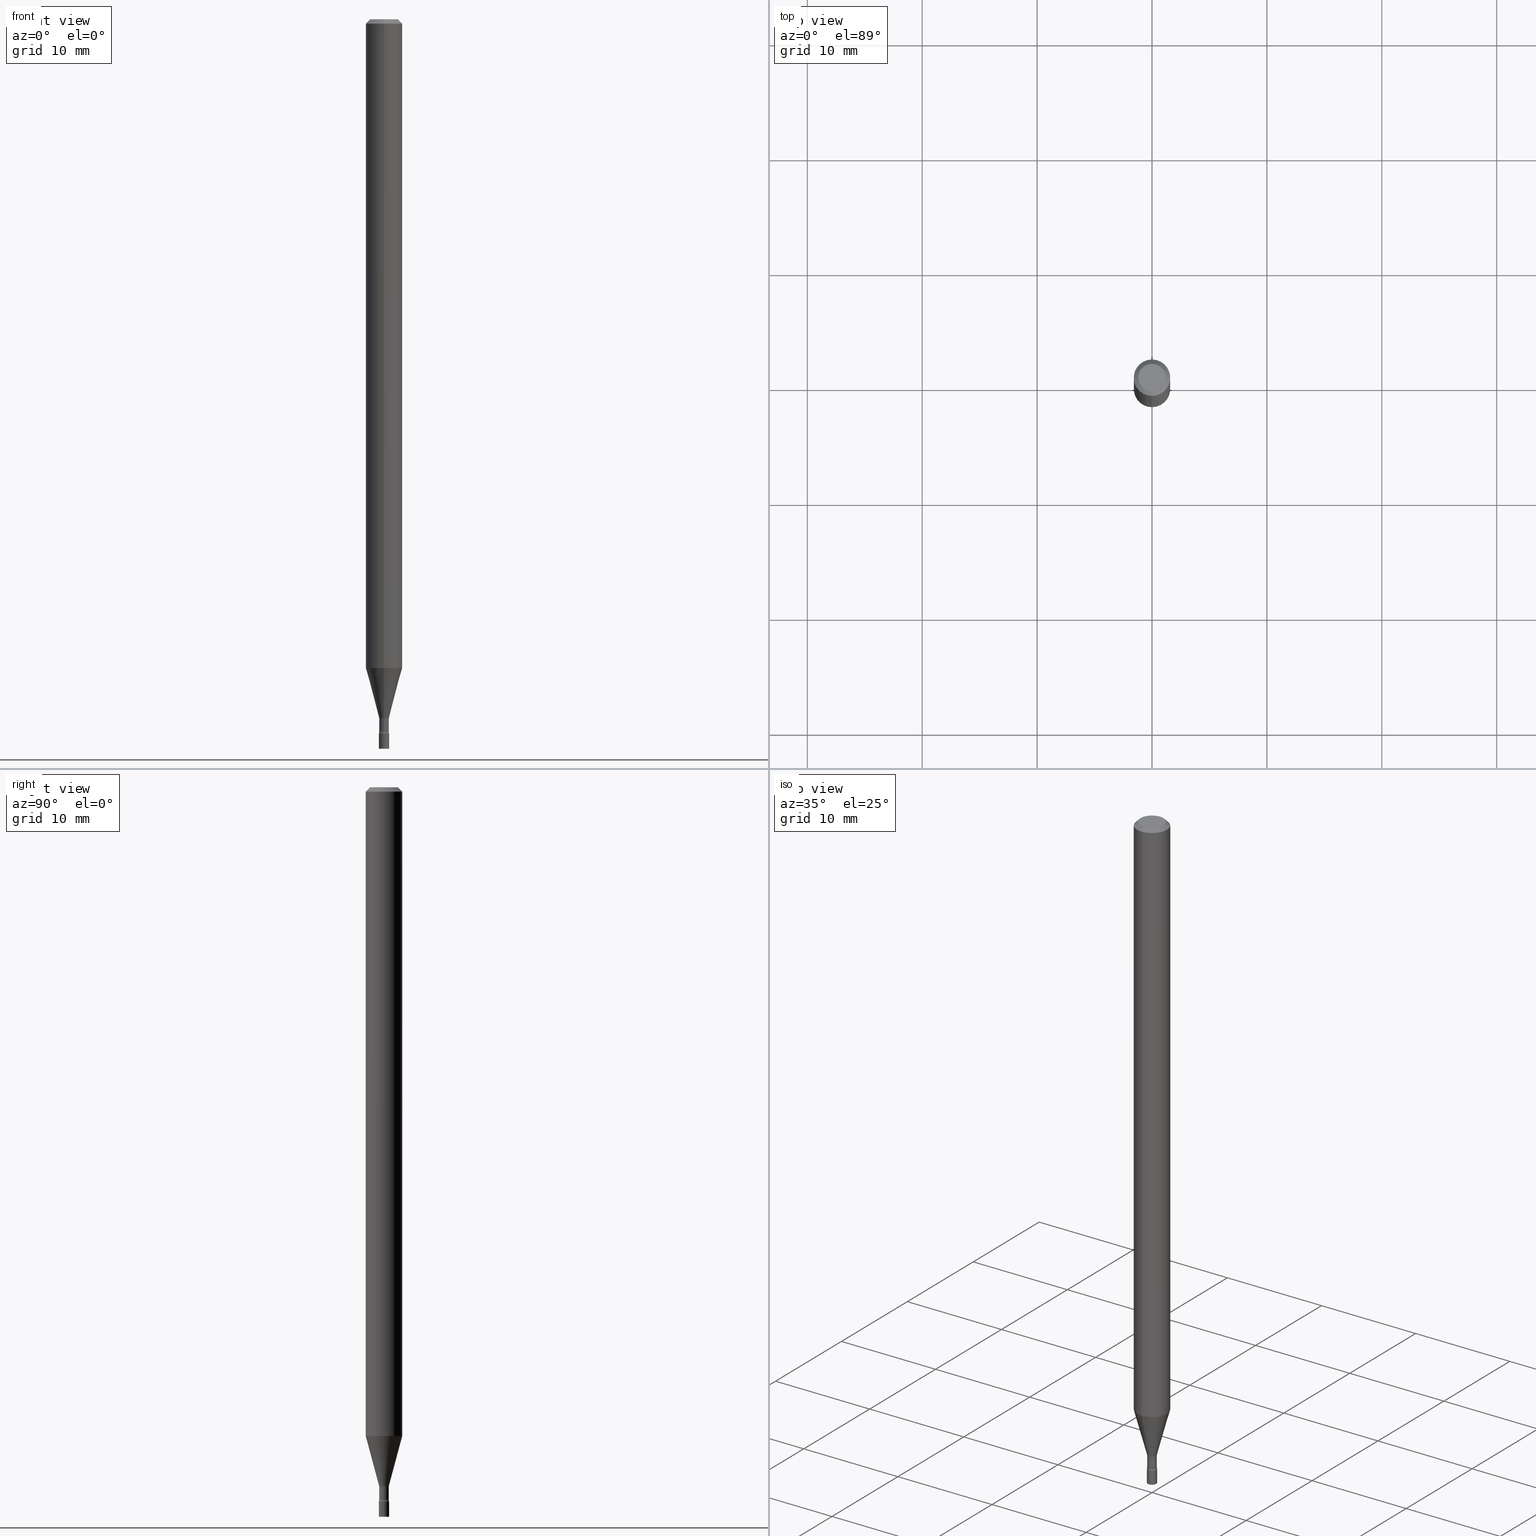
[diagram: canonical four-view strip — front | top / right | iso, engineering-drawing reading convention]
A machine part, canonical four-view strip (front | top / right | iso — engineering-drawing reading convention). The complete STEP part file that produces these views, byte-faithful:
ISO-10303-21;
HEADER;
FILE_DESCRIPTION (( 'STEP AP203' ),
    '1' );
FILE_NAME ('09641.STEP',
    '2024-03-09T00:17:16',
    ( '' ),
    ( '' ),
    'SwSTEP 2.0',
    'SolidWorks 2023',
    '' );
FILE_SCHEMA (( 'CONFIG_CONTROL_DESIGN' ));
ENDSEC;

DATA;
#1 = EDGE_CURVE ( 'NONE', #246, #104, #488, .T. ) ;
#2 = VERTEX_POINT ( 'NONE', #434 ) ;
#3 = CIRCLE ( 'NONE', #224, 0.01750000000000000167 ) ;
#4 = ORIENTED_EDGE ( 'NONE', *, *, #81, .T. ) ;
#5 = ORIENTED_EDGE ( 'NONE', *, *, #1, .F. ) ;
#6 = CARTESIAN_POINT ( 'NONE',  ( 1.222018468595694927E-16, 0.01749999999999145642, -2.447000000000000064 ) ) ;
#7 = CARTESIAN_POINT ( 'NONE',  ( 2.823025816869058306E-16, 0.01696111260565561982, -2.393092501787273285 ) ) ;
#8 = AXIS2_PLACEMENT_3D ( 'NONE', #44, #211, #223 ) ;
#9 = ORIENTED_EDGE ( 'NONE', *, *, #339, .F. ) ;
#10 = PLANE ( 'NONE',  #133 ) ;
#11 = ORIENTED_EDGE ( 'NONE', *, *, #392, .T. ) ;
#12 = EDGE_CURVE ( 'NONE', #88, #520, #515, .T. ) ;
#13 =( LENGTH_UNIT ( ) NAMED_UNIT ( * ) SI_UNIT ( $, .METRE. ) );
#14 = VERTEX_POINT ( 'NONE', #187 ) ;
#15 = SECURITY_CLASSIFICATION_LEVEL ( 'unclassified' ) ;
#16 = ADVANCED_BREP_SHAPE_REPRESENTATION ( '09641', ( #43, #38, #377 ), #290 ) ;
#17 = DIRECTION ( 'NONE',  ( -6.982962677686265922E-15, -1.000000000000000000, 4.370956789862821150E-15 ) ) ;
#18 = AXIS2_PLACEMENT_3D ( 'NONE', #186, #350, #230 ) ;
#19 = DIRECTION ( 'NONE',  ( -6.982962677686265922E-15, -1.000000000000000000, 4.370956789862821150E-15 ) ) ;
#20 = AXIS2_PLACEMENT_3D ( 'NONE', #483, #443, #330 ) ;
#21 = ADVANCED_FACE ( 'NONE', ( #507 ), #402, .T. ) ;
#22 = DIRECTION ( 'NONE',  ( 1.000000000000000000, -6.982962677686248567E-15, 0.000000000000000000 ) ) ;
#23 = COORDINATED_UNIVERSAL_TIME_OFFSET ( 5, 0, .BEHIND. ) ;
#24 = CARTESIAN_POINT ( 'NONE',  ( 4.440892098500625669E-16, 0.06250000000000000000, -2.182166251609361446E-16 ) ) ;
#25 = ADVANCED_FACE ( 'NONE', ( #100 ), #455, .F. ) ;
#26 = PERSON_AND_ORGANIZATION_ROLE ( 'design_owner' ) ;
#27 = ADVANCED_FACE ( 'NONE', ( #66 ), #277, .T. ) ;
#28 = CARTESIAN_POINT ( 'NONE',  ( 6.113672015462842613E-29, -8.728703347107864943E-15, -2.500000000000000000 ) ) ;
#29 = AXIS2_PLACEMENT_3D ( 'NONE', #311, #234, #267 ) ;
#30 = DIRECTION ( 'NONE',  ( -6.982962677686265133E-15, -1.000000000000000000, 3.491466002574977919E-15 ) ) ;
#31 = CARTESIAN_POINT ( 'NONE',  ( 5.436641031974993128E-29, -7.762014448073923594E-15, -2.223139060311453363 ) ) ;
#32 = DATE_TIME_ROLE ( 'creation_date' ) ;
#33 = CC_DESIGN_DATE_AND_TIME_ASSIGNMENT ( #184, #348, ( #329 ) ) ;
#34 = EDGE_CURVE ( 'NONE', #88, #289, #57, .T. ) ;
#35 = ORIENTED_EDGE ( 'NONE', *, *, #449, .F. ) ;
#36 = AXIS2_PLACEMENT_3D ( 'NONE', #172, #220, #419 ) ;
#37 = AXIS2_PLACEMENT_3D ( 'NONE', #304, #291, #165 ) ;
#38 = MANIFOLD_SOLID_BREP ( 'Body-Move/Copy2[2]', #482 ) ;
#39 = AXIS2_PLACEMENT_3D ( 'NONE', #275, #508, #313 ) ;
#40 = ORIENTED_EDGE ( 'NONE', *, *, #295, .T. ) ;
#41 = CARTESIAN_POINT ( 'NONE',  ( 1.168842800325367224E-16, 0.01645000000000003404, -5.743461574235851456E-17 ) ) ;
#42 = ORIENTED_EDGE ( 'NONE', *, *, #190, .T. ) ;
#43 = MANIFOLD_SOLID_BREP ( 'Body-Move/Copy2[1]', #72 ) ;
#44 = CARTESIAN_POINT ( 'NONE',  ( 5.984088374291369240E-29, -8.543617308300972946E-15, -2.447000000000000064 ) ) ;
#45 = ORIENTED_EDGE ( 'NONE', *, *, #244, .T. ) ;
#46 = ORIENTED_EDGE ( 'NONE', *, *, #68, .T. ) ;
#47 = PERSON_AND_ORGANIZATION ( #285, #228 ) ;
#48 = EDGE_CURVE ( 'NONE', #289, #409, #150, .T. ) ;
#49 = LOCAL_TIME ( 19, 17, 16.00000000000000000, #379 ) ;
#50 = CARTESIAN_POINT ( 'NONE',  ( 0.000000000000000000, 0.000000000000000000, 0.000000000000000000 ) ) ;
#51 = EDGE_LOOP ( 'NONE', ( #401, #399, #415, #278 ) ) ;
#52 = PERSON_AND_ORGANIZATION ( #285, #228 ) ;
#53 = DIRECTION ( 'NONE',  ( -4.851104656540964275E-15, -0.7071067811865500152, -0.7071067811865450192 ) ) ;
#54 = VERTEX_POINT ( 'NONE', #467 ) ;
#55 = EDGE_CURVE ( 'NONE', #113, #316, #238, .T. ) ;
#56 = EDGE_CURVE ( 'NONE', #128, #321, #358, .T. ) ;
#57 = CIRCLE ( 'NONE', #397, 0.06250000000000000000 ) ;
#58 = DIRECTION ( 'NONE',  ( -2.445468806185136597E-29, 3.491481338843145583E-15, 1.000000000000000000 ) ) ;
#59 = VECTOR ( 'NONE', #95, 39.37007874015748143 ) ;
#60 = CARTESIAN_POINT ( 'NONE',  ( -1.222018468594496598E-16, -0.01750000000000852610, -2.447000000000000064 ) ) ;
#61 = CARTESIAN_POINT ( 'NONE',  ( -1.184388162973270680E-16, -0.01696111260567232867, -2.393092501787273285 ) ) ;
#62 = PERSON_AND_ORGANIZATION_ROLE ( 'design_supplier' ) ;
#63 = EDGE_CURVE ( 'NONE', #196, #2, #257, .T. ) ;
#64 = ORIENTED_EDGE ( 'NONE', *, *, #121, .T. ) ;
#65 = DIRECTION ( 'NONE',  ( -6.982962677686265922E-15, -1.000000000000000000, 3.491466002574978313E-15 ) ) ;
#66 = FACE_OUTER_BOUND ( 'NONE', #51, .T. ) ;
#67 = VECTOR ( 'NONE', #504, 39.37007874015748143 ) ;
#68 = EDGE_CURVE ( 'NONE', #321, #2, #183, .T. ) ;
#69 = COORDINATED_UNIVERSAL_TIME_OFFSET ( 5, 0, .BEHIND. ) ;
#70 = ORIENTED_EDGE ( 'NONE', *, *, #68, .F. ) ;
#71 = CARTESIAN_POINT ( 'NONE',  ( -3.773273898774340269E-16, -0.04749999999999999362, 1.369299957217045003E-16 ) ) ;
#72 = CLOSED_SHELL ( 'NONE', ( #182, #118, #168, #445 ) ) ;
#73 = TOROIDAL_SURFACE ( 'NONE', #124, 0.03145000000000004042, 0.01499999999999996649 ) ;
#74 = PLANE ( 'NONE',  #309 ) ;
#75 = DIRECTION ( 'NONE',  ( -6.982962677686266711E-15, -1.000000000000000000, 0.000000000000000000 ) ) ;
#76 = ORIENTED_EDGE ( 'NONE', *, *, #34, .F. ) ;
#77 = DIRECTION ( 'NONE',  ( 6.982962677686265922E-15, 1.000000000000000000, -3.491466002574978313E-15 ) ) ;
#78 = EDGE_CURVE ( 'NONE', #14, #289, #481, .T. ) ;
#79 = CARTESIAN_POINT ( 'NONE',  ( 5.861752741778387918E-29, -8.368955979459280172E-15, -2.396974787463811207 ) ) ;
#80 = ORIENTED_EDGE ( 'NONE', *, *, #244, .F. ) ;
#81 = EDGE_CURVE ( 'NONE', #83, #287, #374, .T. ) ;
#82 = DIRECTION ( 'NONE',  ( -2.445479515443959514E-29, 3.491466002574978313E-15, 1.000000000000000000 ) ) ;
#83 = VERTEX_POINT ( 'NONE', #506 ) ;
#84 = CARTESIAN_POINT ( 'NONE',  ( 5.852258691683313053E-29, -8.355401111007364178E-15, -2.393092501787273285 ) ) ;
#85 = ORIENTED_EDGE ( 'NONE', *, *, #418, .F. ) ;
#86 = CARTESIAN_POINT ( 'NONE',  ( 1.168842800325962814E-16, 0.01644999999999162757, -2.396974787463811207 ) ) ;
#87 = CONICAL_SURFACE ( 'NONE', #239, 0.01696111260566397425, 0.2617993877991500740 ) ;
#88 = VERTEX_POINT ( 'NONE', #260 ) ;
#89 = CARTESIAN_POINT ( 'NONE',  ( 5.984088374291369240E-29, -8.543617308300972946E-15, -2.447000000000000064 ) ) ;
#90 = APPROVAL_DATE_TIME ( #270, #120 ) ;
#91 = DIRECTION ( 'NONE',  ( -2.445479515443959514E-29, 3.491466002574978313E-15, 1.000000000000000000 ) ) ;
#92 = DIRECTION ( 'NONE',  ( 7.105427357601005014E-15, 1.000000000000000000, 0.000000000000000000 ) ) ;
#93 = DIRECTION ( 'NONE',  ( -6.982962677686265922E-15, -1.000000000000000000, 0.000000000000000000 ) ) ;
#94 = CARTESIAN_POINT ( 'NONE',  ( 0.000000000000000000, 0.000000000000000000, 0.000000000000000000 ) ) ;
#95 = DIRECTION ( 'NONE',  ( 4.937700262164548042E-15, 0.7071067811865451302, -0.7071067811865499042 ) ) ;
#96 = CARTESIAN_POINT ( 'NONE',  ( 2.234656903966115026E-16, 0.03144999999999151946, -2.441486607215153537 ) ) ;
#97 = AXIS2_PLACEMENT_3D ( 'NONE', #310, #470, #276 ) ;
#98 = AXIS2_PLACEMENT_3D ( 'NONE', #363, #367, #420 ) ;
#99 = FACE_OUTER_BOUND ( 'NONE', #498, .T. ) ;
#100 = FACE_OUTER_BOUND ( 'NONE', #337, .T. ) ;
#101 = FACE_OUTER_BOUND ( 'NONE', #492, .T. ) ;
#102 = COORDINATED_UNIVERSAL_TIME_OFFSET ( 5, 0, .BEHIND. ) ;
#103 = FACE_OUTER_BOUND ( 'NONE', #225, .T. ) ;
#104 = VERTEX_POINT ( 'NONE', #148 ) ;
#105 = CARTESIAN_POINT ( 'NONE',  ( -1.148697360478798871E-16, -0.01645000000000860010, -2.441486607215153537 ) ) ;
#106 = APPLICATION_CONTEXT ( 'configuration controlled 3d designs of mechanical parts and assemblies' ) ;
#107 = CARTESIAN_POINT ( 'NONE',  ( 0.000000000000000000, 0.000000000000000000, 0.000000000000000000 ) ) ;
#108 = AXIS2_PLACEMENT_3D ( 'NONE', #231, #344, #306 ) ;
#109 = AXIS2_PLACEMENT_3D ( 'NONE', #242, #159, #325 ) ;
#110 = EDGE_CURVE ( 'NONE', #14, #54, #123, .T. ) ;
#111 = DIRECTION ( 'NONE',  ( -2.445479515443959514E-29, 3.491466002574978313E-15, 1.000000000000000000 ) ) ;
#112 = CARTESIAN_POINT ( 'NONE',  ( 0.01750000000000000167, -8.850905193967374926E-15, -2.500000000000000000 ) ) ;
#113 = VERTEX_POINT ( 'NONE', #315 ) ;
#114 = CARTESIAN_POINT ( 'NONE',  ( -1.148697360479393229E-16, -0.01645000000000003404, 5.743461574235851456E-17 ) ) ;
#115 = ORIENTED_EDGE ( 'NONE', *, *, #199, .F. ) ;
#116 = DIRECTION ( 'NONE',  ( -6.982962677686266711E-15, -1.000000000000000000, 0.000000000000000000 ) ) ;
#117 = AXIS2_PLACEMENT_3D ( 'NONE', #406, #485, #202 ) ;
#118 = ADVANCED_FACE ( 'NONE', ( #103 ), #200, .T. ) ;
#119 = ADVANCED_FACE ( 'NONE', ( #286 ), #509, .F. ) ;
#120 = APPROVAL ( #516, 'UNSPECIFIED' ) ;
#121 = EDGE_CURVE ( 'NONE', #464, #487, #197, .T. ) ;
#122 = ORIENTED_EDGE ( 'NONE', *, *, #48, .F. ) ;
#123 = CIRCLE ( 'NONE', #97, 0.01500000000000003587 ) ;
#124 = AXIS2_PLACEMENT_3D ( 'NONE', #180, #139, #491 ) ;
#125 = PRODUCT ( '09641', '09641', '', ( #143 ) ) ;
#126 = EDGE_LOOP ( 'NONE', ( #296, #446, #255, #157 ) ) ;
#127 = CARTESIAN_POINT ( 'NONE',  ( 6.113672015462842613E-29, -8.728703347107864943E-15, -2.500000000000000000 ) ) ;
#128 = VERTEX_POINT ( 'NONE', #112 ) ;
#129 = APPROVAL_DATE_TIME ( #175, #141 ) ;
#130 = EDGE_LOOP ( 'NONE', ( #411, #46, #209, #331 ) ) ;
#131 = APPLICATION_CONTEXT ( 'configuration controlled 3d designs of mechanical parts and assemblies' ) ;
#132 = VECTOR ( 'NONE', #457, 39.37007874015748143 ) ;
#133 = AXIS2_PLACEMENT_3D ( 'NONE', #6, #334, #65 ) ;
#134 = ORIENTED_EDGE ( 'NONE', *, *, #110, .F. ) ;
#135 = CARTESIAN_POINT ( 'NONE',  ( -0.01750000000000000167, -8.511834112870504850E-15, -2.500000000000000000 ) ) ;
#136 = CARTESIAN_POINT ( 'NONE',  ( -4.364351673553916201E-16, -0.06250000000000000000, 2.182166251609361446E-16 ) ) ;
#137 = CARTESIAN_POINT ( 'NONE',  ( 4.364351673553919652E-16, 0.06249999999999995143, -0.01500000000000024751 ) ) ;
#138 = EDGE_CURVE ( 'NONE', #520, #409, #416, .T. ) ;
#139 = DIRECTION ( 'NONE',  ( -2.445479515443959514E-29, 3.491466002574978313E-15, 1.000000000000000000 ) ) ;
#140 = CALENDAR_DATE ( 2024, 8, 3 ) ;
#141 = APPROVAL ( #215, 'UNSPECIFIED' ) ;
#142 = FACE_OUTER_BOUND ( 'NONE', #130, .T. ) ;
#143 = MECHANICAL_CONTEXT ( 'NONE', #106, 'mechanical' ) ;
#144 = CARTESIAN_POINT ( 'NONE',  ( 5.861727071954997320E-29, -8.368992740107411140E-15, -2.396974787463811207 ) ) ;
#145 = VECTOR ( 'NONE', #208, 39.37007874015748143 ) ;
#146 = DIRECTION ( 'NONE',  ( -6.982962677686266711E-15, -1.000000000000000000, 3.491466002574978313E-15 ) ) ;
#147 = ADVANCED_FACE ( 'NONE', ( #99 ), #365, .T. ) ;
#148 = CARTESIAN_POINT ( 'NONE',  ( 1.243449787580772513E-16, 0.01749999999999143907, -2.447000000000000064 ) ) ;
#149 = ORIENTED_EDGE ( 'NONE', *, *, #55, .T. ) ;
#150 = LINE ( 'NONE', #136, #132 ) ;
#151 = APPROVAL_ROLE ( '' ) ;
#152 = AXIS2_PLACEMENT_3D ( 'NONE', #50, #222, #185 ) ;
#153 = APPROVAL_PERSON_ORGANIZATION ( #47, #141, #465 ) ;
#154 = APPROVAL_PERSON_ORGANIZATION ( #195, #171, #400 ) ;
#155 = DIRECTION ( 'NONE',  ( 7.105427357601005014E-15, 1.000000000000000000, 0.000000000000000000 ) ) ;
#156 = CC_DESIGN_PERSON_AND_ORGANIZATION_ASSIGNMENT ( #52, #268, ( #216 ) ) ;
#157 = ORIENTED_EDGE ( 'NONE', *, *, #517, .T. ) ;
#158 = AXIS2_PLACEMENT_3D ( 'NONE', #96, #459, #92 ) ;
#159 = DIRECTION ( 'NONE',  ( -2.445479515443959514E-29, 3.491466002574978313E-15, 1.000000000000000000 ) ) ;
#160 = APPROVAL_PERSON_ORGANIZATION ( #357, #120, #151 ) ;
#161 = CARTESIAN_POINT ( 'NONE',  ( 5.861727071954997320E-29, -8.368992740107411140E-15, -2.396974787463811207 ) ) ;
#162 = FACE_OUTER_BOUND ( 'NONE', #340, .T. ) ;
#163 = EDGE_LOOP ( 'NONE', ( #503, #490, #252, #453 ) ) ;
#164 = ORIENTED_EDGE ( 'NONE', *, *, #1, .T. ) ;
#165 = DIRECTION ( 'NONE',  ( -6.982962677686265922E-15, -1.000000000000000000, 0.000000000000000000 ) ) ;
#166 = EDGE_LOOP ( 'NONE', ( #369, #356 ) ) ;
#167 = PLANE ( 'NONE',  #499 ) ;
#168 = ADVANCED_FACE ( 'NONE', ( #430 ), #338, .T. ) ;
#169 =( NAMED_UNIT ( * ) SI_UNIT ( $, .STERADIAN. ) SOLID_ANGLE_UNIT ( ) );
#170 = ORIENTED_EDGE ( 'NONE', *, *, #63, .T. ) ;
#171 = APPROVAL ( #469, 'UNSPECIFIED' ) ;
#172 = CARTESIAN_POINT ( 'NONE',  ( 3.668219273165946278E-31, -5.237199003862477479E-17, -0.01500000000000003067 ) ) ;
#173 = FACE_OUTER_BOUND ( 'NONE', #382, .T. ) ;
#174 = ORIENTED_EDGE ( 'NONE', *, *, #138, .T. ) ;
#175 = DATE_AND_TIME ( #352, #49 ) ;
#176 = DIMENSIONAL_EXPONENTS ( 1.000000000000000000, 0.000000000000000000, 0.000000000000000000, 0.000000000000000000, 0.000000000000000000, 0.000000000000000000, 0.000000000000000000 ) ;
#177 = AXIS2_PLACEMENT_3D ( 'NONE', #425, #58, #22 ) ;
#178 = AXIS2_PLACEMENT_3D ( 'NONE', #205, #288, #75 ) ;
#179 = ORIENTED_EDGE ( 'NONE', *, *, #458, .F. ) ;
#180 = CARTESIAN_POINT ( 'NONE',  ( 5.970579338663442113E-29, -8.524404928127174921E-15, -2.441486607215153537 ) ) ;
#181 = PERSON_AND_ORGANIZATION ( #285, #228 ) ;
#182 = ADVANCED_FACE ( 'NONE', ( #142 ), #308, .T. ) ;
#183 = LINE ( 'NONE', #440, #474 ) ;
#184 = DATE_AND_TIME ( #262, #451 ) ;
#185 = DIRECTION ( 'NONE',  ( 1.000000000000000000, -6.982962677686265922E-15, 4.876176775795936353E-29 ) ) ;
#186 = CARTESIAN_POINT ( 'NONE',  ( 5.970605485175430126E-29, -8.524367484833838844E-15, -2.441486607215153537 ) ) ;
#187 = CARTESIAN_POINT ( 'NONE',  ( -1.184388162973270680E-16, -0.01696111260567232867, -2.393092501787273285 ) ) ;
#188 = PERSON_AND_ORGANIZATION_ROLE ( 'classification_officer' ) ;
#189 = CARTESIAN_POINT ( 'NONE',  ( 5.436641031974993128E-29, -7.762014448073923594E-15, -2.223139060311453363 ) ) ;
#190 = EDGE_CURVE ( 'NONE', #289, #88, #284, .T. ) ;
#191 = DIRECTION ( 'NONE',  ( 6.982962677686265922E-15, 1.000000000000000000, -3.483106191921935554E-15 ) ) ;
#192 = CIRCLE ( 'NONE', #20, 0.01750000000000000167 ) ;
#193 = CYLINDRICAL_SURFACE ( 'NONE', #428, 0.01645000000000003404 ) ;
#194 = CARTESIAN_POINT ( 'NONE',  ( 3.668219273165946278E-31, -5.237199003862477479E-17, -0.01500000000000003067 ) ) ;
#195 = PERSON_AND_ORGANIZATION ( #285, #228 ) ;
#196 = VERTEX_POINT ( 'NONE', #303 ) ;
#197 = CIRCLE ( 'NONE', #271, 0.01500000000000002720 ) ;
#198 = ORIENTED_EDGE ( 'NONE', *, *, #395, .T. ) ;
#199 = EDGE_CURVE ( 'NONE', #83, #104, #375, .T. ) ;
#200 = PLANE ( 'NONE',  #319 ) ;
#201 = ADVANCED_FACE ( 'NONE', ( #266 ), #73, .F. ) ;
#202 = DIRECTION ( 'NONE',  ( -6.982962677686266711E-15, -1.000000000000000000, 3.491466002574978313E-15 ) ) ;
#203 = ORIENTED_EDGE ( 'NONE', *, *, #12, .T. ) ;
#204 = AXIS2_PLACEMENT_3D ( 'NONE', #494, #253, #116 ) ;
#205 = CARTESIAN_POINT ( 'NONE',  ( 5.852258691683313053E-29, -8.355401111007364178E-15, -2.393092501787273285 ) ) ;
#206 = ORIENTED_EDGE ( 'NONE', *, *, #339, .T. ) ;
#207 = CC_DESIGN_PERSON_AND_ORGANIZATION_ASSIGNMENT ( #226, #62, ( #216 ) ) ;
#208 = DIRECTION ( 'NONE',  ( -2.445479515443959234E-29, 3.491466002574978313E-15, 1.000000000000000000 ) ) ;
#209 = ORIENTED_EDGE ( 'NONE', *, *, #63, .F. ) ;
#210 = FACE_OUTER_BOUND ( 'NONE', #219, .T. ) ;
#211 = DIRECTION ( 'NONE',  ( -2.445479515443959514E-29, 3.491466002574978313E-15, 1.000000000000000000 ) ) ;
#212 = ORIENTED_EDGE ( 'NONE', *, *, #336, .T. ) ;
#213 = VECTOR ( 'NONE', #261, 39.37007874015748143 ) ;
#214 = EDGE_LOOP ( 'NONE', ( #431, #332, #212, #9 ) ) ;
#215 = APPROVAL_STATUS ( 'not_yet_approved' ) ;
#216 = PRODUCT_DEFINITION_FORMATION_WITH_SPECIFIED_SOURCE ( 'ANY', '', #125, .NOT_KNOWN. ) ;
#217 = ADVANCED_FACE ( 'NONE', ( #210 ), #167, .F. ) ;
#218 = DIRECTION ( 'NONE',  ( -1.000000000000000000, 6.982962677686265922E-15, -4.876176775795935793E-29 ) ) ;
#219 = EDGE_LOOP ( 'NONE', ( #149, #391 ) ) ;
#220 = DIRECTION ( 'NONE',  ( -2.445479515443959514E-29, 3.491466002574978313E-15, 1.000000000000000000 ) ) ;
#221 = DIRECTION ( 'NONE',  ( -2.445479515443959514E-29, 3.491466002574978313E-15, 1.000000000000000000 ) ) ;
#222 = DIRECTION ( 'NONE',  ( -2.445468806185136597E-29, 3.491481338843145583E-15, 1.000000000000000000 ) ) ;
#223 = DIRECTION ( 'NONE',  ( -6.982962677686265922E-15, -1.000000000000000000, 0.000000000000000000 ) ) ;
#224 = AXIS2_PLACEMENT_3D ( 'NONE', #127, #293, #249 ) ;
#225 = EDGE_LOOP ( 'NONE', ( #170, #198 ) ) ;
#226 = PERSON_AND_ORGANIZATION ( #285, #228 ) ;
#227 = CARTESIAN_POINT ( 'NONE',  ( 1.205159535236945149E-16, 0.01696111260565561982, -2.393092501787273285 ) ) ;
#228 = ORGANIZATION ( 'UNSPECIFIED', 'UNSPECIFIED', '' ) ;
#229 = DIRECTION ( 'NONE',  ( -2.445479515443959514E-29, 3.491466002574978313E-15, 1.000000000000000000 ) ) ;
#230 = DIRECTION ( 'NONE',  ( -6.982962677686265133E-15, -1.000000000000000000, 0.000000000000000000 ) ) ;
#231 = CARTESIAN_POINT ( 'NONE',  ( 7.071015835063315397E-46, -1.009544804439341533E-31, -2.891463940060696814E-17 ) ) ;
#232 = EDGE_CURVE ( 'NONE', #321, #128, #3, .T. ) ;
#233 = DIRECTION ( 'NONE',  ( 1.000000000000000000, -6.982962677686265922E-15, 4.876176775795935793E-29 ) ) ;
#234 = DIRECTION ( 'NONE',  ( -2.445479515443959514E-29, 3.491466002574978313E-15, 1.000000000000000000 ) ) ;
#235 = AXIS2_PLACEMENT_3D ( 'NONE', #500, #390, #380 ) ;
#236 = CALENDAR_DATE ( 2024, 8, 3 ) ;
#237 = EDGE_CURVE ( 'NONE', #83, #487, #493, .T. ) ;
#238 = CIRCLE ( 'NONE', #108, 0.04749999999999999362 ) ;
#239 = AXIS2_PLACEMENT_3D ( 'NONE', #84, #82, #254 ) ;
#240 = CARTESIAN_POINT ( 'NONE',  ( 1.222018468595707746E-16, 0.01749999999999127254, -2.500000000000000000 ) ) ;
#241 = ADVANCED_FACE ( 'NONE', ( #412 ), #10, .F. ) ;
#242 = CARTESIAN_POINT ( 'NONE',  ( 5.970579338663442113E-29, -8.524404928127174921E-15, -2.441486607215153537 ) ) ;
#243 = DIRECTION ( 'NONE',  ( -2.438088387897960049E-29, 3.491481338843145188E-15, 1.000000000000000000 ) ) ;
#244 = EDGE_CURVE ( 'NONE', #464, #88, #472, .T. ) ;
#245 = PRODUCT_RELATED_PRODUCT_CATEGORY ( 'detail', '', ( #125 ) ) ;
#246 = VERTEX_POINT ( 'NONE', #60 ) ;
#247 = VECTOR ( 'NONE', #388, 39.37007874015748854 ) ;
#248 = AXIS2_PLACEMENT_3D ( 'NONE', #345, #496, #505 ) ;
#249 = DIRECTION ( 'NONE',  ( 1.000000000000000000, -6.982962677686303787E-15, 0.000000000000000000 ) ) ;
#250 = CARTESIAN_POINT ( 'NONE',  ( 7.071015835063315397E-46, -1.009544804439341533E-31, -2.891463940060696814E-17 ) ) ;
#251 = CC_DESIGN_APPROVAL ( #120, ( #216 ) ) ;
#252 = ORIENTED_EDGE ( 'NONE', *, *, #449, .T. ) ;
#253 = DIRECTION ( 'NONE',  ( -2.445479515443959514E-29, 3.491466002574978313E-15, 1.000000000000000000 ) ) ;
#254 = DIRECTION ( 'NONE',  ( -6.982962677686266711E-15, -1.000000000000000000, 0.000000000000000000 ) ) ;
#255 = ORIENTED_EDGE ( 'NONE', *, *, #110, .T. ) ;
#256 = ORIENTED_EDGE ( 'NONE', *, *, #395, .F. ) ;
#257 = CIRCLE ( 'NONE', #177, 0.01750000000000000167 ) ;
#258 = VECTOR ( 'NONE', #283, 39.37007874015748143 ) ;
#259 = ORIENTED_EDGE ( 'NONE', *, *, #190, .F. ) ;
#260 = CARTESIAN_POINT ( 'NONE',  ( 4.440892098501167517E-16, 0.06249999999999222150, -2.223139060311453807 ) ) ;
#261 = DIRECTION ( 'NONE',  ( -2.445479515443959234E-29, 3.491466002574978313E-15, 1.000000000000000000 ) ) ;
#262 = CALENDAR_DATE ( 2024, 8, 3 ) ;
#263 = ADVANCED_FACE ( 'NONE', ( #389 ), #193, .T. ) ;
#264 = CARTESIAN_POINT ( 'NONE',  ( -4.364351673553374352E-16, -0.06250000000000777156, -2.223139060311453363 ) ) ;
#265 = DIRECTION ( 'NONE',  ( -6.982962677686265922E-15, -1.000000000000000000, 3.483106191921935554E-15 ) ) ;
#266 = FACE_OUTER_BOUND ( 'NONE', #163, .T. ) ;
#267 = DIRECTION ( 'NONE',  ( -6.982962677686265922E-15, -1.000000000000000000, 3.491466002574978313E-15 ) ) ;
#268 = PERSON_AND_ORGANIZATION_ROLE ( 'creator' ) ;
#269 = CARTESIAN_POINT ( 'NONE',  ( -2.196141762131736265E-16, -0.03145000000000856832, -2.441486607215153537 ) ) ;
#270 = DATE_AND_TIME ( #140, #281 ) ;
#271 = AXIS2_PLACEMENT_3D ( 'NONE', #394, #477, #155 ) ;
#272 = EDGE_CURVE ( 'NONE', #128, #196, #349, .T. ) ;
#273 = AXIS2_PLACEMENT_3D ( 'NONE', #79, #410, #362 ) ;
#274 = ORIENTED_EDGE ( 'NONE', *, *, #435, .T. ) ;
#275 = CARTESIAN_POINT ( 'NONE',  ( 5.852258691683313053E-29, -8.355401111007364178E-15, -2.393092501787273285 ) ) ;
#276 = DIRECTION ( 'NONE',  ( -6.982962677686265133E-15, -1.000000000000000000, 0.000000000000000000 ) ) ;
#277 = CYLINDRICAL_SURFACE ( 'NONE', #29, 0.06250000000000000000 ) ;
#278 = ORIENTED_EDGE ( 'NONE', *, *, #138, .F. ) ;
#279 = PERSON_AND_ORGANIZATION_ROLE ( 'creator' ) ;
#280 = CIRCLE ( 'NONE', #39, 0.01696111260566397425 ) ;
#281 = LOCAL_TIME ( 19, 17, 16.00000000000000000, #475 ) ;
#282 = PRODUCT_DEFINITION_SHAPE ( 'NONE', 'NONE',  #328 ) ;
#283 = DIRECTION ( 'NONE',  ( -2.445479515443959234E-29, 3.491466002574978313E-15, 1.000000000000000000 ) ) ;
#284 = CIRCLE ( 'NONE', #320, 0.06250000000000000000 ) ;
#285 = PERSON ( 'UNSPECIFIED', 'UNSPECIFIED', 'UNSPECIFIED', ('UNSPECIFIED'), ('UNSPECIFIED'), ('UNSPECIFIED') ) ;
#286 = FACE_OUTER_BOUND ( 'NONE', #126, .T. ) ;
#287 = VERTEX_POINT ( 'NONE', #105 ) ;
#288 = DIRECTION ( 'NONE',  ( -2.445479515443959514E-29, 3.491466002574978313E-15, 1.000000000000000000 ) ) ;
#289 = VERTEX_POINT ( 'NONE', #264 ) ;
#290 =( GEOMETRIC_REPRESENTATION_CONTEXT ( 3 ) GLOBAL_UNCERTAINTY_ASSIGNED_CONTEXT ( ( #519 ) ) GLOBAL_UNIT_ASSIGNED_CONTEXT ( ( #460, #299, #169 ) ) REPRESENTATION_CONTEXT ( 'NONE', 'WORKASPACE' ) );
#291 = DIRECTION ( 'NONE',  ( -2.445479515443959514E-29, 3.491466002574978313E-15, 1.000000000000000000 ) ) ;
#292 = EDGE_LOOP ( 'NONE', ( #335, #354, #454, #378 ) ) ;
#293 = DIRECTION ( 'NONE',  ( -2.445468806185136597E-29, 3.491481338843145583E-15, 1.000000000000000000 ) ) ;
#294 = EDGE_LOOP ( 'NONE', ( #80, #11, #347, #76 ) ) ;
#295 = EDGE_CURVE ( 'NONE', #14, #464, #280, .T. ) ;
#296 = ORIENTED_EDGE ( 'NONE', *, *, #121, .F. ) ;
#297 = ADVANCED_FACE ( 'NONE', ( #101 ), #480, .T. ) ;
#298 = VECTOR ( 'NONE', #462, 39.37007874015748854 ) ;
#299 =( NAMED_UNIT ( * ) PLANE_ANGLE_UNIT ( ) SI_UNIT ( $, .RADIAN. ) );
#300 = ORIENTED_EDGE ( 'NONE', *, *, #392, .F. ) ;
#301 = CC_DESIGN_APPROVAL ( #141, ( #329 ) ) ;
#302 = CARTESIAN_POINT ( 'NONE',  ( 3.668219273165946278E-31, -5.237199003862477479E-17, -0.01500000000000003067 ) ) ;
#303 = CARTESIAN_POINT ( 'NONE',  ( 0.01750000000000000167, -8.665856683008687659E-15, -2.447000000000000064 ) ) ;
#304 = CARTESIAN_POINT ( 'NONE',  ( 5.861752741778387918E-29, -8.368955979459280172E-15, -2.396974787463811207 ) ) ;
#305 = CC_DESIGN_PERSON_AND_ORGANIZATION_ASSIGNMENT ( #386, #188, ( #329 ) ) ;
#306 = DIRECTION ( 'NONE',  ( -6.982962677686266711E-15, -1.000000000000000000, 3.491466002574978313E-15 ) ) ;
#307 = ADVANCED_FACE ( 'NONE', ( #450 ), #436, .T. ) ;
#308 = CYLINDRICAL_SURFACE ( 'NONE', #235, 0.01750000000000000167 ) ;
#309 = AXIS2_PLACEMENT_3D ( 'NONE', #240, #501, #218 ) ;
#310 = CARTESIAN_POINT ( 'NONE',  ( -2.196141762131744400E-16, -0.03145000000000837403, -2.396974787463811207 ) ) ;
#311 = CARTESIAN_POINT ( 'NONE',  ( 0.000000000000000000, 0.000000000000000000, 0.000000000000000000 ) ) ;
#312 = CC_DESIGN_DATE_AND_TIME_ASSIGNMENT ( #346, #32, ( #328 ) ) ;
#313 = DIRECTION ( 'NONE',  ( -6.982962677686266711E-15, -1.000000000000000000, 0.000000000000000000 ) ) ;
#314 = APPLICATION_PROTOCOL_DEFINITION ( 'international standard', 'config_control_design', 1994, #131 ) ;
#315 = CARTESIAN_POINT ( 'NONE',  ( 3.840629472727447874E-16, 0.04749999999999999362, -1.947592745229183872E-16 ) ) ;
#316 = VERTEX_POINT ( 'NONE', #71 ) ;
#317 = PERSON_AND_ORGANIZATION ( #285, #228 ) ;
#318 = CC_DESIGN_PERSON_AND_ORGANIZATION_ASSIGNMENT ( #181, #279, ( #328 ) ) ;
#319 = AXIS2_PLACEMENT_3D ( 'NONE', #479, #243, #233 ) ;
#320 = AXIS2_PLACEMENT_3D ( 'NONE', #189, #383, #17 ) ;
#321 = VERTEX_POINT ( 'NONE', #135 ) ;
#322 = ORIENTED_EDGE ( 'NONE', *, *, #336, .F. ) ;
#323 = CARTESIAN_POINT ( 'NONE',  ( 5.970605485175430126E-29, -8.524367484833838844E-15, -2.441486607215153537 ) ) ;
#324 = ORIENTED_EDGE ( 'NONE', *, *, #355, .T. ) ;
#325 = DIRECTION ( 'NONE',  ( -6.982962677686265133E-15, -1.000000000000000000, 3.491466002574977919E-15 ) ) ;
#326 = AXIS2_PLACEMENT_3D ( 'NONE', #89, #229, #93 ) ;
#327 = VECTOR ( 'NONE', #53, 39.37007874015748143 ) ;
#328 = PRODUCT_DEFINITION ( 'UNKNOWN', '', #216, #405 ) ;
#329 = SECURITY_CLASSIFICATION ( '', '', #15 ) ;
#330 = DIRECTION ( 'NONE',  ( 1.000000000000000000, -6.982962677686248567E-15, 0.000000000000000000 ) ) ;
#331 = ORIENTED_EDGE ( 'NONE', *, *, #272, .F. ) ;
#332 = ORIENTED_EDGE ( 'NONE', *, *, #458, .T. ) ;
#333 = CIRCLE ( 'NONE', #476, 0.04749999999999999362 ) ;
#334 = DIRECTION ( 'NONE',  ( -2.445479515443958954E-29, 3.491466002574978313E-15, 1.000000000000000000 ) ) ;
#335 = ORIENTED_EDGE ( 'NONE', *, *, #423, .T. ) ;
#336 = EDGE_CURVE ( 'NONE', #409, #520, #359, .T. ) ;
#337 = EDGE_LOOP ( 'NONE', ( #300, #64, #452, #134 ) ) ;
#338 = CYLINDRICAL_SURFACE ( 'NONE', #152, 0.01750000000000000167 ) ;
#339 = EDGE_CURVE ( 'NONE', #113, #520, #463, .T. ) ;
#340 = EDGE_LOOP ( 'NONE', ( #413, #4, #274, #85 ) ) ;
#341 = SHAPE_DEFINITION_REPRESENTATION ( #282, #16 ) ;
#342 = CC_DESIGN_PERSON_AND_ORGANIZATION_ASSIGNMENT ( #317, #26, ( #125 ) ) ;
#343 = AXIS2_PLACEMENT_3D ( 'NONE', #269, #427, #466 ) ;
#344 = DIRECTION ( 'NONE',  ( -2.445479515443959514E-29, 3.491466002574978313E-15, 1.000000000000000000 ) ) ;
#345 = CARTESIAN_POINT ( 'NONE',  ( 3.668219273165946278E-31, -5.237199003862477479E-17, -0.01500000000000003067 ) ) ;
#346 = DATE_AND_TIME ( #236, #429 ) ;
#347 = ORIENTED_EDGE ( 'NONE', *, *, #78, .T. ) ;
#348 = DATE_TIME_ROLE ( 'classification_date' ) ;
#349 = LINE ( 'NONE', #468, #67 ) ;
#350 = DIRECTION ( 'NONE',  ( -2.445479515443959514E-29, 3.491466002574978313E-15, 1.000000000000000000 ) ) ;
#351 = DIRECTION ( 'NONE',  ( 2.445479515443959514E-29, -3.491466002574978313E-15, -1.000000000000000000 ) ) ;
#352 = CALENDAR_DATE ( 2024, 8, 3 ) ;
#353 = DIRECTION ( 'NONE',  ( -2.445479515443959514E-29, 3.491466002574978313E-15, 1.000000000000000000 ) ) ;
#354 = ORIENTED_EDGE ( 'NONE', *, *, #237, .T. ) ;
#355 = EDGE_CURVE ( 'NONE', #287, #246, #417, .T. ) ;
#356 = ORIENTED_EDGE ( 'NONE', *, *, #232, .F. ) ;
#357 = PERSON_AND_ORGANIZATION ( #285, #228 ) ;
#358 = CIRCLE ( 'NONE', #407, 0.01750000000000000167 ) ;
#359 = CIRCLE ( 'NONE', #518, 0.06250000000000000000 ) ;
#360 = ADVANCED_FACE ( 'NONE', ( #514 ), #510, .F. ) ;
#361 = ORIENTED_EDGE ( 'NONE', *, *, #272, .T. ) ;
#362 = DIRECTION ( 'NONE',  ( -6.982962677686265922E-15, -1.000000000000000000, 0.000000000000000000 ) ) ;
#363 = CARTESIAN_POINT ( 'NONE',  ( 0.000000000000000000, 0.000000000000000000, 0.000000000000000000 ) ) ;
#364 = CARTESIAN_POINT ( 'NONE',  ( -4.364351673553912750E-16, -0.06250000000000005551, -0.01499999999999981209 ) ) ;
#365 = CONICAL_SURFACE ( 'NONE', #248, 0.06250000000000000000, 0.7853981633974483900 ) ;
#366 = EDGE_LOOP ( 'NONE', ( #5, #35 ) ) ;
#367 = DIRECTION ( 'NONE',  ( -2.445479515443959514E-29, 3.491466002574978313E-15, 1.000000000000000000 ) ) ;
#368 = DIRECTION ( 'NONE',  ( -6.982962677686266711E-15, -1.000000000000000000, 3.491466002574978313E-15 ) ) ;
#369 = ORIENTED_EDGE ( 'NONE', *, *, #56, .F. ) ;
#370 = CYLINDRICAL_SURFACE ( 'NONE', #117, 0.01645000000000003404 ) ;
#371 = ORIENTED_EDGE ( 'NONE', *, *, #232, .T. ) ;
#372 = LINE ( 'NONE', #381, #327 ) ;
#373 = ORIENTED_EDGE ( 'NONE', *, *, #423, .F. ) ;
#374 = CIRCLE ( 'NONE', #18, 0.01645000000000007567 ) ;
#375 = CIRCLE ( 'NONE', #158, 0.01499999999999996302 ) ;
#376 = DIRECTION ( 'NONE',  ( 2.445479515443958954E-29, -3.491466002574978313E-15, -1.000000000000000000 ) ) ;
#377 = AXIS2_PLACEMENT_3D ( 'NONE', #107, #511, #438 ) ;
#378 = ORIENTED_EDGE ( 'NONE', *, *, #435, .F. ) ;
#379 = COORDINATED_UNIVERSAL_TIME_OFFSET ( 5, 0, .BEHIND. ) ;
#380 = DIRECTION ( 'NONE',  ( 1.000000000000000000, -6.982962677686265922E-15, 4.876176775795936353E-29 ) ) ;
#381 = CARTESIAN_POINT ( 'NONE',  ( -4.287811248607203282E-16, -0.06250000000000005551, -0.01499999999999981209 ) ) ;
#382 = EDGE_LOOP ( 'NONE', ( #40, #45, #259, #471 ) ) ;
#383 = DIRECTION ( 'NONE',  ( -2.445479515443959514E-29, 3.491466002574978313E-15, 1.000000000000000000 ) ) ;
#384 = APPLICATION_PROTOCOL_DEFINITION ( 'international standard', 'config_control_design', 1994, #106 ) ;
#385 = DIRECTION ( 'NONE',  ( -6.982962677686265133E-15, -1.000000000000000000, 3.491466002574977919E-15 ) ) ;
#386 = PERSON_AND_ORGANIZATION ( #285, #228 ) ;
#387 = ADVANCED_FACE ( 'NONE', ( #162 ), #370, .T. ) ;
#388 = DIRECTION ( 'NONE',  ( -1.807323732225328562E-15, -0.2588190451025179639, 0.9659258262890690894 ) ) ;
#389 = FACE_OUTER_BOUND ( 'NONE', #292, .T. ) ;
#390 = DIRECTION ( 'NONE',  ( -2.445468806185136597E-29, 3.491481338843145583E-15, 1.000000000000000000 ) ) ;
#391 = ORIENTED_EDGE ( 'NONE', *, *, #393, .T. ) ;
#392 = EDGE_CURVE ( 'NONE', #464, #14, #408, .T. ) ;
#393 = EDGE_CURVE ( 'NONE', #316, #113, #333, .T. ) ;
#394 = CARTESIAN_POINT ( 'NONE',  ( 2.234656903966101221E-16, 0.03144999999999163048, -2.396974787463811207 ) ) ;
#395 = EDGE_CURVE ( 'NONE', #2, #196, #192, .T. ) ;
#396 = DATE_AND_TIME ( #433, #512 ) ;
#397 = AXIS2_PLACEMENT_3D ( 'NONE', #31, #502, #19 ) ;
#398 = CIRCLE ( 'NONE', #37, 0.01644999999999999588 ) ;
#399 = ORIENTED_EDGE ( 'NONE', *, *, #34, .T. ) ;
#400 = APPROVAL_ROLE ( '' ) ;
#401 = ORIENTED_EDGE ( 'NONE', *, *, #12, .F. ) ;
#402 = CONICAL_SURFACE ( 'NONE', #497, 0.06250000000000000000, 0.7853981633974483900 ) ;
#403 = CIRCLE ( 'NONE', #8, 0.01750000000000000167 ) ;
#404 = DIRECTION ( 'NONE',  ( -2.445468806185136877E-29, 3.491481338843145188E-15, 1.000000000000000000 ) ) ;
#405 = DESIGN_CONTEXT ( 'detailed design', #131, 'design' ) ;
#406 = CARTESIAN_POINT ( 'NONE',  ( 0.000000000000000000, 0.000000000000000000, 0.000000000000000000 ) ) ;
#407 = AXIS2_PLACEMENT_3D ( 'NONE', #28, #513, #461 ) ;
#408 = CIRCLE ( 'NONE', #178, 0.01696111260566397425 ) ;
#409 = VERTEX_POINT ( 'NONE', #364 ) ;
#410 = DIRECTION ( 'NONE',  ( -2.445479515443959514E-29, 3.491466002574978313E-15, 1.000000000000000000 ) ) ;
#411 = ORIENTED_EDGE ( 'NONE', *, *, #56, .T. ) ;
#412 = FACE_OUTER_BOUND ( 'NONE', #366, .T. ) ;
#413 = ORIENTED_EDGE ( 'NONE', *, *, #237, .F. ) ;
#414 = LENGTH_MEASURE_WITH_UNIT ( LENGTH_MEASURE( 0.02539999999999999897 ), #13 );
#415 = ORIENTED_EDGE ( 'NONE', *, *, #48, .T. ) ;
#416 = CIRCLE ( 'NONE', #36, 0.06250000000000000000 ) ;
#417 = CIRCLE ( 'NONE', #343, 0.01499999999999996302 ) ;
#418 = EDGE_CURVE ( 'NONE', #487, #54, #484, .T. ) ;
#419 = DIRECTION ( 'NONE',  ( -6.982962677686265922E-15, -1.000000000000000000, 3.483106191921935554E-15 ) ) ;
#420 = DIRECTION ( 'NONE',  ( -6.982962677686265922E-15, -1.000000000000000000, 3.491466002574978313E-15 ) ) ;
#421 = EDGE_LOOP ( 'NONE', ( #70, #371, #361, #256 ) ) ;
#422 = EDGE_LOOP ( 'NONE', ( #115, #373, #324, #164 ) ) ;
#423 = EDGE_CURVE ( 'NONE', #287, #83, #456, .T. ) ;
#424 = CARTESIAN_POINT ( 'NONE',  ( 4.440892098501173434E-16, 0.06249999999999995143, -0.01500000000000024751 ) ) ;
#425 = CARTESIAN_POINT ( 'NONE',  ( 5.984062168735030320E-29, -8.543654836149177676E-15, -2.447000000000000064 ) ) ;
#426 = AXIS2_PLACEMENT_3D ( 'NONE', #161, #432, #30 ) ;
#427 = DIRECTION ( 'NONE',  ( -1.000000000000000000, 6.982962677686265922E-15, -4.883557194083112901E-29 ) ) ;
#428 = AXIS2_PLACEMENT_3D ( 'NONE', #94, #353, #146 ) ;
#429 = LOCAL_TIME ( 19, 17, 16.00000000000000000, #69 ) ;
#430 = FACE_OUTER_BOUND ( 'NONE', #421, .T. ) ;
#431 = ORIENTED_EDGE ( 'NONE', *, *, #393, .F. ) ;
#432 = DIRECTION ( 'NONE',  ( -2.445479515443959514E-29, 3.491466002574978313E-15, 1.000000000000000000 ) ) ;
#433 = CALENDAR_DATE ( 2024, 8, 3 ) ;
#434 = CARTESIAN_POINT ( 'NONE',  ( -0.01750000000000000167, -8.511834112870504850E-15, -2.447000000000000064 ) ) ;
#435 = EDGE_CURVE ( 'NONE', #287, #54, #478, .T. ) ;
#436 = CONICAL_SURFACE ( 'NONE', #204, 0.01696111260566397425, 0.2617993877991500740 ) ;
#437 = CC_DESIGN_APPROVAL ( #171, ( #328 ) ) ;
#438 = DIRECTION ( 'NONE',  ( 1.000000000000000000, 0.000000000000000000, 0.000000000000000000 ) ) ;
#439 = DIRECTION ( 'NONE',  ( -6.982962677686265133E-15, -1.000000000000000000, 0.000000000000000000 ) ) ;
#440 = CARTESIAN_POINT ( 'NONE',  ( -0.01750000000000000167, 1.243449787580175444E-16, -8.608136407946085539E-31 ) ) ;
#441 = FACE_OUTER_BOUND ( 'NONE', #166, .T. ) ;
#442 = CARTESIAN_POINT ( 'NONE',  ( 3.316907271900976096E-16, 0.04749999999999999362, -1.803019548226149217E-16 ) ) ;
#443 = DIRECTION ( 'NONE',  ( -2.445468806185136597E-29, 3.491481338843145583E-15, 1.000000000000000000 ) ) ;
#444 = AXIS2_PLACEMENT_3D ( 'NONE', #144, #221, #385 ) ;
#445 = ADVANCED_FACE ( 'NONE', ( #441 ), #74, .T. ) ;
#446 = ORIENTED_EDGE ( 'NONE', *, *, #295, .F. ) ;
#447 = CC_DESIGN_SECURITY_CLASSIFICATION ( #329, ( #216 ) ) ;
#448 = ADVANCED_FACE ( 'NONE', ( #173 ), #87, .T. ) ;
#449 = EDGE_CURVE ( 'NONE', #104, #246, #403, .T. ) ;
#450 = FACE_OUTER_BOUND ( 'NONE', #294, .T. ) ;
#451 = LOCAL_TIME ( 19, 17, 16.00000000000000000, #23 ) ;
#452 = ORIENTED_EDGE ( 'NONE', *, *, #418, .T. ) ;
#453 = ORIENTED_EDGE ( 'NONE', *, *, #355, .F. ) ;
#454 = ORIENTED_EDGE ( 'NONE', *, *, #517, .F. ) ;
#455 = TOROIDAL_SURFACE ( 'NONE', #444, 0.03145000000000000573, 0.01500000000000003240 ) ;
#456 = CIRCLE ( 'NONE', #489, 0.01645000000000007567 ) ;
#457 = DIRECTION ( 'NONE',  ( -2.445479515443959234E-29, 3.491466002574978313E-15, 1.000000000000000000 ) ) ;
#458 = EDGE_CURVE ( 'NONE', #316, #409, #372, .T. ) ;
#459 = DIRECTION ( 'NONE',  ( 1.000000000000000000, -7.105427357601001070E-15, 4.926315320726965605E-29 ) ) ;
#460 =( CONVERSION_BASED_UNIT ( 'INCH', #414 ) LENGTH_UNIT ( ) NAMED_UNIT ( #176 ) );
#461 = DIRECTION ( 'NONE',  ( 1.000000000000000000, -6.982962677686303787E-15, 0.000000000000000000 ) ) ;
#462 = DIRECTION ( 'NONE',  ( 1.839019923739598738E-15, 0.2588190451025247363, 0.9659258262890673130 ) ) ;
#463 = LINE ( 'NONE', #137, #59 ) ;
#464 = VERTEX_POINT ( 'NONE', #7 ) ;
#465 = APPROVAL_ROLE ( '' ) ;
#466 = DIRECTION ( 'NONE',  ( -6.982962677686265133E-15, -1.000000000000000000, 0.000000000000000000 ) ) ;
#467 = CARTESIAN_POINT ( 'NONE',  ( -1.148697360478804295E-16, -0.01645000000000836418, -2.396974787463811207 ) ) ;
#468 = CARTESIAN_POINT ( 'NONE',  ( 0.01750000000000000167, -1.222018468595096625E-16, 8.533309357642889039E-31 ) ) ;
#469 = APPROVAL_STATUS ( 'not_yet_approved' ) ;
#470 = DIRECTION ( 'NONE',  ( -1.000000000000000000, 6.982962677686265922E-15, -4.883557194083112901E-29 ) ) ;
#471 = ORIENTED_EDGE ( 'NONE', *, *, #78, .F. ) ;
#472 = LINE ( 'NONE', #227, #298 ) ;
#473 = APPROVAL_DATE_TIME ( #396, #171 ) ;
#474 = VECTOR ( 'NONE', #404, 39.37007874015748143 ) ;
#475 = COORDINATED_UNIVERSAL_TIME_OFFSET ( 5, 0, .BEHIND. ) ;
#476 = AXIS2_PLACEMENT_3D ( 'NONE', #250, #486, #368 ) ;
#477 = DIRECTION ( 'NONE',  ( 1.000000000000000000, -7.105427357601001070E-15, 4.926315320726965605E-29 ) ) ;
#478 = LINE ( 'NONE', #114, #258 ) ;
#479 = CARTESIAN_POINT ( 'NONE',  ( 5.984062168735030320E-29, -8.543654836149177676E-15, -2.447000000000000064 ) ) ;
#480 = CYLINDRICAL_SURFACE ( 'NONE', #98, 0.06250000000000000000 ) ;
#481 = LINE ( 'NONE', #61, #247 ) ;
#482 = CLOSED_SHELL ( 'NONE', ( #25, #263, #201, #21, #297, #448, #307, #27, #147, #217, #241, #360, #387, #119 ) ) ;
#483 = CARTESIAN_POINT ( 'NONE',  ( 5.984062168735030320E-29, -8.543654836149177676E-15, -2.447000000000000064 ) ) ;
#484 = CIRCLE ( 'NONE', #273, 0.01644999999999999588 ) ;
#485 = DIRECTION ( 'NONE',  ( -2.445479515443959514E-29, 3.491466002574978313E-15, 1.000000000000000000 ) ) ;
#486 = DIRECTION ( 'NONE',  ( -2.445479515443959514E-29, 3.491466002574978313E-15, 1.000000000000000000 ) ) ;
#487 = VERTEX_POINT ( 'NONE', #86 ) ;
#488 = CIRCLE ( 'NONE', #326, 0.01750000000000000167 ) ;
#489 = AXIS2_PLACEMENT_3D ( 'NONE', #323, #111, #439 ) ;
#490 = ORIENTED_EDGE ( 'NONE', *, *, #199, .T. ) ;
#491 = DIRECTION ( 'NONE',  ( -6.982962677686265133E-15, -1.000000000000000000, 3.491466002574977919E-15 ) ) ;
#492 = EDGE_LOOP ( 'NONE', ( #42, #203, #322, #122 ) ) ;
#493 = LINE ( 'NONE', #41, #145 ) ;
#494 = CARTESIAN_POINT ( 'NONE',  ( 5.852258691683313053E-29, -8.355401111007364178E-15, -2.393092501787273285 ) ) ;
#495 = ORIENTED_EDGE ( 'NONE', *, *, #55, .F. ) ;
#496 = DIRECTION ( 'NONE',  ( 2.445479515443959514E-29, -3.491466002574978313E-15, -1.000000000000000000 ) ) ;
#497 = AXIS2_PLACEMENT_3D ( 'NONE', #194, #351, #191 ) ;
#498 = EDGE_LOOP ( 'NONE', ( #179, #495, #206, #174 ) ) ;
#499 = AXIS2_PLACEMENT_3D ( 'NONE', #442, #376, #77 ) ;
#500 = CARTESIAN_POINT ( 'NONE',  ( 0.000000000000000000, 0.000000000000000000, 0.000000000000000000 ) ) ;
#501 = DIRECTION ( 'NONE',  ( 2.438088387897960049E-29, -3.491481338843145188E-15, -1.000000000000000000 ) ) ;
#502 = DIRECTION ( 'NONE',  ( -2.445479515443959514E-29, 3.491466002574978313E-15, 1.000000000000000000 ) ) ;
#503 = ORIENTED_EDGE ( 'NONE', *, *, #81, .F. ) ;
#504 = DIRECTION ( 'NONE',  ( -2.445468806185136877E-29, 3.491481338843145188E-15, 1.000000000000000000 ) ) ;
#505 = DIRECTION ( 'NONE',  ( 6.982962677686265922E-15, 1.000000000000000000, -3.483106191921935554E-15 ) ) ;
#506 = CARTESIAN_POINT ( 'NONE',  ( 1.206146293953369389E-16, 0.01644999999999155124, -2.441486607215153537 ) ) ;
#507 = FACE_OUTER_BOUND ( 'NONE', #214, .T. ) ;
#508 = DIRECTION ( 'NONE',  ( -2.445479515443959514E-29, 3.491466002574978313E-15, 1.000000000000000000 ) ) ;
#509 = TOROIDAL_SURFACE ( 'NONE', #426, 0.03145000000000000573, 0.01500000000000003240 ) ;
#510 = TOROIDAL_SURFACE ( 'NONE', #109, 0.03145000000000004042, 0.01499999999999996649 ) ;
#511 = DIRECTION ( 'NONE',  ( 0.000000000000000000, 0.000000000000000000, 1.000000000000000000 ) ) ;
#512 = LOCAL_TIME ( 19, 17, 16.00000000000000000, #102 ) ;
#513 = DIRECTION ( 'NONE',  ( -2.445468806185136597E-29, 3.491481338843145583E-15, 1.000000000000000000 ) ) ;
#514 = FACE_OUTER_BOUND ( 'NONE', #422, .T. ) ;
#515 = LINE ( 'NONE', #24, #213 ) ;
#516 = APPROVAL_STATUS ( 'not_yet_approved' ) ;
#517 = EDGE_CURVE ( 'NONE', #54, #487, #398, .T. ) ;
#518 = AXIS2_PLACEMENT_3D ( 'NONE', #302, #91, #265 ) ;
#519 = UNCERTAINTY_MEASURE_WITH_UNIT (LENGTH_MEASURE( 1.000000000000000082E-05 ), #460, 'distance_accuracy_value', 'NONE');
#520 = VERTEX_POINT ( 'NONE', #424 ) ;
ENDSEC;
END-ISO-10303-21;
